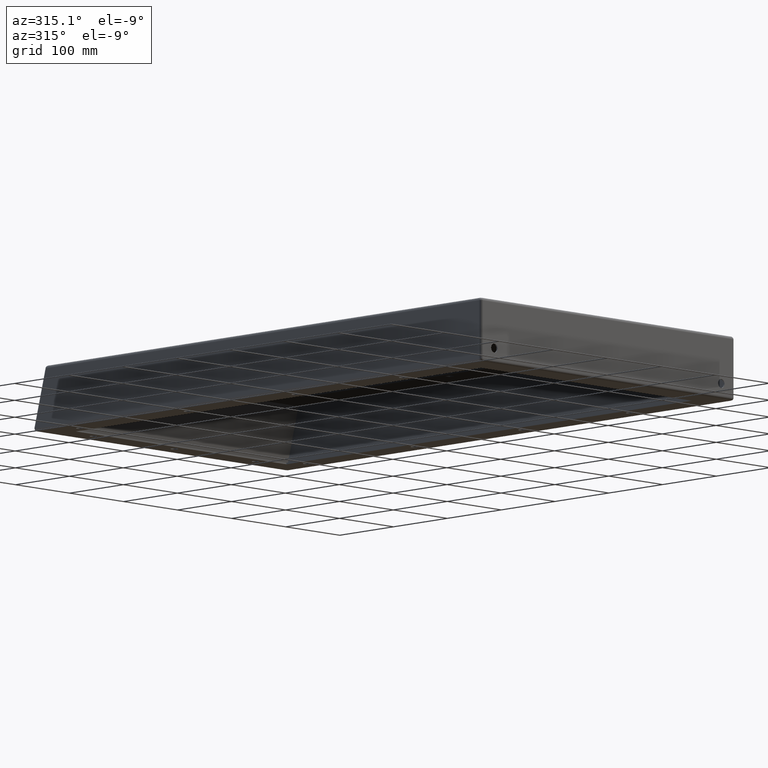
[diagram: clean part render]
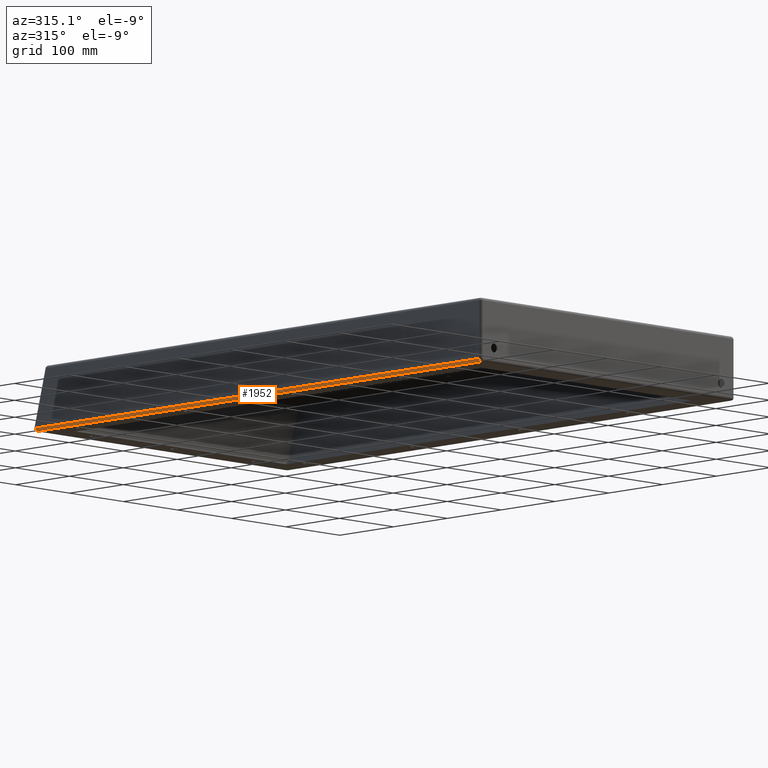
[diagram: same view with one face highlighted and labeled with its STEP entity id]
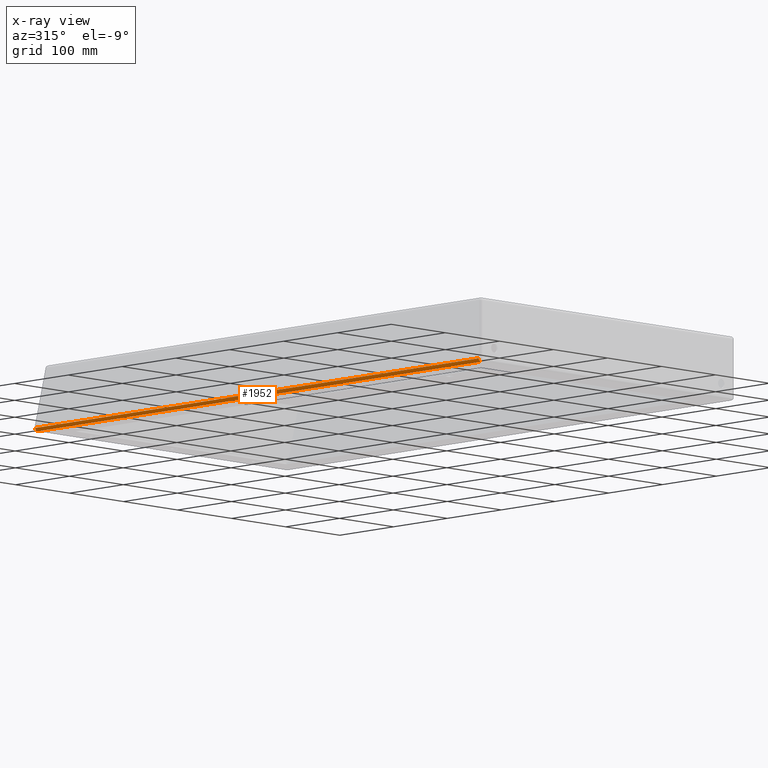
[diagram: x-ray of the same camera — body ghosted, the highlighted face saturated]
A machine part, auxiliary view. The second image highlights one B-rep face of the part: STEP entity #1952.
The next image is the same camera in x-ray: the body ghosted, the highlighted face saturated — about 0% of this face is hidden behind the body in this view.
In plain terms, the highlighted cylindrical surface (edge-blend (fillet) strip) has radius 4 mm, axis along (-0, 1, 0).
Its self-contained STEP definition (entity closure, byte-faithful):
#180 = CARTESIAN_POINT ( 'NONE',  ( -230.9999999999999700, 3.999999999999998200, 4.000000000000000000 ) ) ;
#181 = DIRECTION ( 'NONE',  ( -0.0000000000000000000, -1.000000000000000000, -0.0000000000000000000 ) ) ;
#182 = DIRECTION ( 'NONE',  ( 0.0000000000000000000, 0.0000000000000000000, -1.000000000000000000 ) ) ;
#185 = CARTESIAN_POINT ( 'NONE',  ( -230.9999999999999700, 827.5627798652805000, 4.000000000000000000 ) ) ;
#186 = DIRECTION ( 'NONE',  ( 0.0000000000000000000, 1.000000000000000000, 0.0000000000000000000 ) ) ;
#187 = DIRECTION ( 'NONE',  ( 0.0000000000000000000, 0.0000000000000000000, 1.000000000000000000 ) ) ;
#255 = CARTESIAN_POINT ( 'NONE',  ( -230.9999999999999700, 827.5627798652805000, 0.0000000000000000000 ) ) ;
#262 = CARTESIAN_POINT ( 'NONE',  ( -230.9999999999999700, 3.999999999999998200, 0.0000000000000000000 ) ) ;
#319 = CARTESIAN_POINT ( 'NONE',  ( -235.0000000000000000, 827.5627798652805000, 3.999999999999988900 ) ) ;
#320 = CARTESIAN_POINT ( 'NONE',  ( -235.0000000000000000, 3.999999999999998200, 4.000000000000000000 ) ) ;
#598 = DIRECTION ( 'NONE',  ( 0.0000000000000000000, 0.0000000000000000000, 1.000000000000000000 ) ) ;
#599 = CARTESIAN_POINT ( 'NONE',  ( -230.9999999999999700, 0.0000000000000000000, 4.000000000000000000 ) ) ;
#600 = DIRECTION ( 'NONE',  ( -0.0000000000000000000, 1.000000000000000000, 0.0000000000000000000 ) ) ;
#980 = EDGE_CURVE ( 'NONE', #1429, #1422, #2230, .T. ) ;
#1054 = EDGE_CURVE ( 'NONE', #1514, #1515, #2595, .T. ) ;
#1192 = EDGE_CURVE ( 'NONE', #1515, #1429, #3050, .T. ) ;
#1193 = EDGE_CURVE ( 'NONE', #1422, #1514, #3054, .T. ) ;
#1238 = EDGE_LOOP ( 'NONE', ( #2030, #2031, #2032, #2033 ) ) ;
#1422 = VERTEX_POINT ( 'NONE', #255 ) ;
#1429 = VERTEX_POINT ( 'NONE', #262 ) ;
#1514 = VERTEX_POINT ( 'NONE', #319 ) ;
#1515 = VERTEX_POINT ( 'NONE', #320 ) ;
#1952 = ADVANCED_FACE ( 'NONE', ( #3152 ), #3157, .T. ) ;
#2030 = ORIENTED_EDGE ( 'NONE', *, *, #1192, .F. ) ;
#2031 = ORIENTED_EDGE ( 'NONE', *, *, #1054, .F. ) ;
#2032 = ORIENTED_EDGE ( 'NONE', *, *, #1193, .F. ) ;
#2033 = ORIENTED_EDGE ( 'NONE', *, *, #980, .F. ) ;
#2230 = LINE ( 'NONE', #2386, #2233 ) ;
#2233 = VECTOR ( 'NONE', #2387, 1000.000000000000000 ) ;
#2386 = CARTESIAN_POINT ( 'NONE',  ( -230.9999999999999700, 0.0000000000000000000, 0.0000000000000000000 ) ) ;
#2387 = DIRECTION ( 'NONE',  ( -0.0000000000000000000, 1.000000000000000000, 0.0000000000000000000 ) ) ;
#2595 = LINE ( 'NONE', #2841, #2598 ) ;
#2598 = VECTOR ( 'NONE', #2842, 1000.000000000000000 ) ;
#2841 = CARTESIAN_POINT ( 'NONE',  ( -235.0000000000000000, 0.0000000000000000000, 4.000000000000000000 ) ) ;
#2842 = DIRECTION ( 'NONE',  ( -0.0000000000000000000, -1.000000000000000000, -0.0000000000000000000 ) ) ;
#3050 = CIRCLE ( 'NONE', #3184, 4.000000000000000000 ) ;
#3054 = CIRCLE ( 'NONE', #3185, 4.000000000000000000 ) ;
#3152 = FACE_OUTER_BOUND ( 'NONE', #1238, .T. ) ;
#3157 = CYLINDRICAL_SURFACE ( 'NONE', #3259, 4.000000000000000000 ) ;
#3184 = AXIS2_PLACEMENT_3D ( 'NONE', #180, #181, #182 ) ;
#3185 = AXIS2_PLACEMENT_3D ( 'NONE', #185, #186, #187 ) ;
#3259 = AXIS2_PLACEMENT_3D ( 'NONE', #599, #600, #598 ) ;